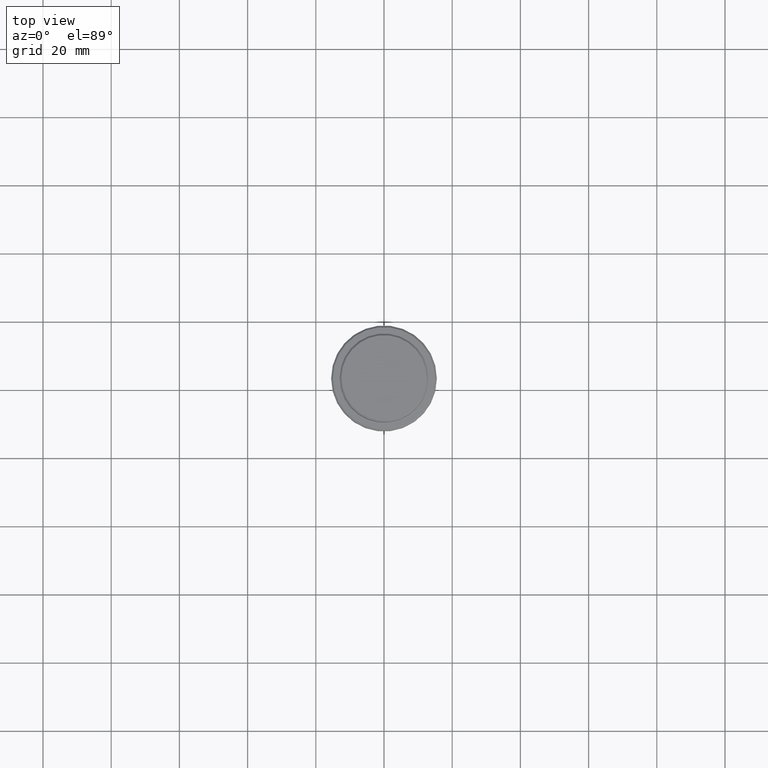
[diagram: clean part render]
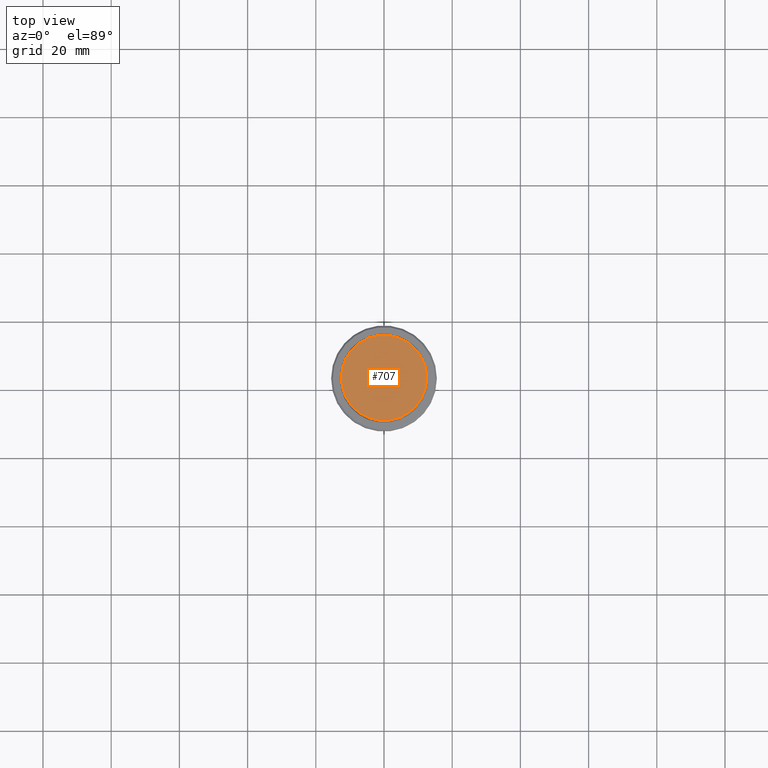
[diagram: same view with one face highlighted and labeled with its STEP entity id]
A machine part, top view. The second image highlights one B-rep face of the part: STEP entity #707.
In plain terms, the highlighted planar face has unit normal (0, -0, 1).
Its self-contained STEP definition (entity closure, byte-faithful):
#188 = AXIS2_PLACEMENT_3D ( 'NONE', #295, #1168, #603 ) ;
#265 = DIRECTION ( 'NONE',  ( 0.000000000000000000, -0.000000000000000000, 1.000000000000000000 ) ) ;
#280 = CIRCLE ( 'NONE', #306, 12.49999999999998579 ) ;
#295 = CARTESIAN_POINT ( 'NONE',  ( 0.000000000000000000, 0.000000000000000000, 0.000000000000000000 ) ) ;
#306 = AXIS2_PLACEMENT_3D ( 'NONE', #1052, #947, #510 ) ;
#453 = ORIENTED_EDGE ( 'NONE', *, *, #640, .T. ) ;
#510 = DIRECTION ( 'NONE',  ( 1.000000000000000000, 0.000000000000000000, 0.000000000000000000 ) ) ;
#528 = CARTESIAN_POINT ( 'NONE',  ( 0.000000000000000000, 0.000000000000000000, 0.000000000000000000 ) ) ;
#603 = DIRECTION ( 'NONE',  ( 1.000000000000000000, 0.000000000000000000, 0.000000000000000000 ) ) ;
#640 = EDGE_CURVE ( 'NONE', #1047, #1177, #280, .T. ) ;
#672 = CARTESIAN_POINT ( 'NONE',  ( 12.49999999999998579, 1.561424668912874125E-15, 0.000000000000000000 ) ) ;
#707 = ADVANCED_FACE ( 'NONE', ( #828 ), #1366, .T. ) ;
#713 = CARTESIAN_POINT ( 'NONE',  ( -12.49999999999998579, 0.000000000000000000, 0.000000000000000000 ) ) ;
#725 = EDGE_CURVE ( 'NONE', #1177, #1047, #1335, .T. ) ;
#727 = DIRECTION ( 'NONE',  ( 1.000000000000000000, 0.000000000000000000, 0.000000000000000000 ) ) ;
#749 = ORIENTED_EDGE ( 'NONE', *, *, #725, .T. ) ;
#809 = EDGE_LOOP ( 'NONE', ( #749, #453 ) ) ;
#828 = FACE_OUTER_BOUND ( 'NONE', #809, .T. ) ;
#947 = DIRECTION ( 'NONE',  ( -0.000000000000000000, -0.000000000000000000, 1.000000000000000000 ) ) ;
#1047 = VERTEX_POINT ( 'NONE', #672 ) ;
#1052 = CARTESIAN_POINT ( 'NONE',  ( 0.000000000000000000, 0.000000000000000000, 0.000000000000000000 ) ) ;
#1168 = DIRECTION ( 'NONE',  ( -0.000000000000000000, -0.000000000000000000, 1.000000000000000000 ) ) ;
#1177 = VERTEX_POINT ( 'NONE', #713 ) ;
#1335 = CIRCLE ( 'NONE', #188, 12.49999999999998579 ) ;
#1366 = PLANE ( 'NONE',  #1399 ) ;
#1399 = AXIS2_PLACEMENT_3D ( 'NONE', #528, #265, #727 ) ;